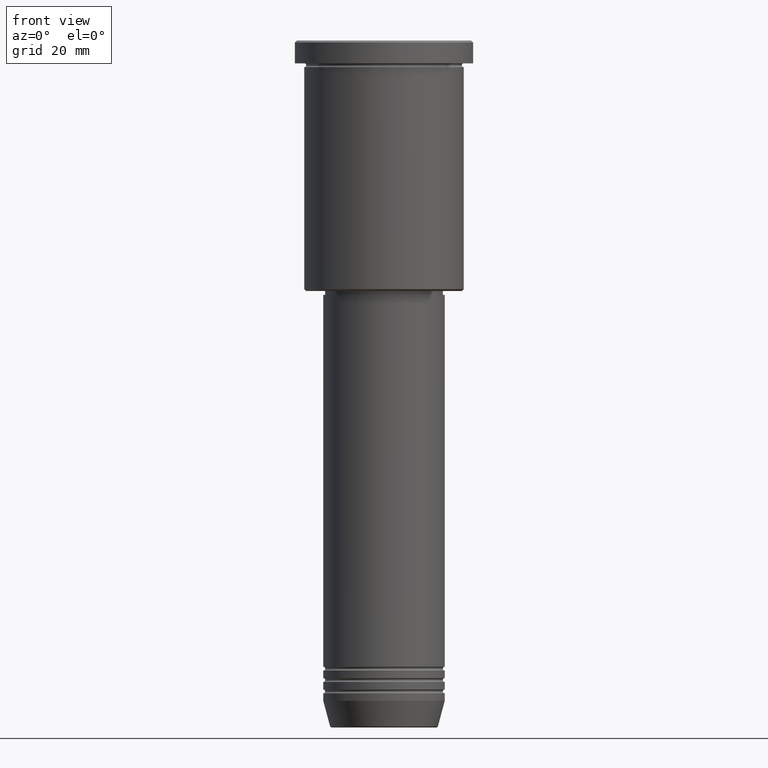
[diagram: clean part render]
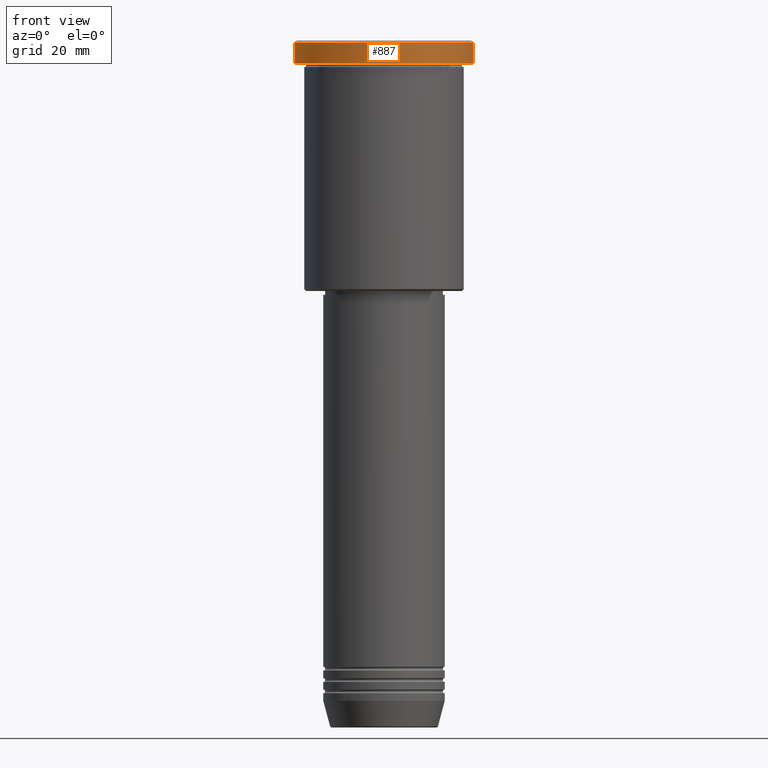
[diagram: same view with one face highlighted and labeled with its STEP entity id]
A machine part, front view. The second image highlights one B-rep face of the part: STEP entity #887.
In plain terms, the highlighted cylindrical surface (partial cylindrical patch) has radius 23.5 mm, axis along (-0, -0, 1).
Its self-contained STEP definition (entity closure, byte-faithful):
#17 = DIRECTION ( 'NONE',  ( 1.000000000000000000, 0.000000000000000000, 0.000000000000000000 ) ) ;
#21 = AXIS2_PLACEMENT_3D ( 'NONE', #1077, #1172, #17 ) ;
#58 = EDGE_CURVE ( 'NONE', #826, #503, #1037, .T. ) ;
#121 = CYLINDRICAL_SURFACE ( 'NONE', #1080, 23.50000000000000000 ) ;
#132 = CARTESIAN_POINT ( 'NONE',  ( 23.50000000000000000, 0.000000000000000000, -0.5000000000000004441 ) ) ;
#133 = CARTESIAN_POINT ( 'NONE',  ( -23.50000000000000000, 2.877919977996280320E-15, 0.000000000000000000 ) ) ;
#196 = CARTESIAN_POINT ( 'NONE',  ( 23.50000000000000000, 0.000000000000000000, 0.000000000000000000 ) ) ;
#205 = CARTESIAN_POINT ( 'NONE',  ( -23.50000000000000000, 2.877919977996280320E-15, -5.999999999999994671 ) ) ;
#215 = CARTESIAN_POINT ( 'NONE',  ( -23.50000000000000000, 2.877919977996280320E-15, -0.5000000000000004441 ) ) ;
#219 = EDGE_CURVE ( 'NONE', #1047, #503, #838, .T. ) ;
#246 = DIRECTION ( 'NONE',  ( -0.000000000000000000, -0.000000000000000000, 1.000000000000000000 ) ) ;
#376 = DIRECTION ( 'NONE',  ( 1.000000000000000000, 0.000000000000000000, 0.000000000000000000 ) ) ;
#399 = ORIENTED_EDGE ( 'NONE', *, *, #862, .T. ) ;
#403 = ORIENTED_EDGE ( 'NONE', *, *, #219, .T. ) ;
#405 = ORIENTED_EDGE ( 'NONE', *, *, #58, .F. ) ;
#414 = LINE ( 'NONE', #196, #1068 ) ;
#451 = DIRECTION ( 'NONE',  ( -0.000000000000000000, -0.000000000000000000, 1.000000000000000000 ) ) ;
#465 = DIRECTION ( 'NONE',  ( 1.000000000000000000, 0.000000000000000000, 0.000000000000000000 ) ) ;
#466 = EDGE_CURVE ( 'NONE', #712, #1047, #414, .T. ) ;
#500 = VECTOR ( 'NONE', #246, 1000.000000000000000 ) ;
#503 = VERTEX_POINT ( 'NONE', #215 ) ;
#562 = DIRECTION ( 'NONE',  ( -0.000000000000000000, -0.000000000000000000, 1.000000000000000000 ) ) ;
#576 = CARTESIAN_POINT ( 'NONE',  ( 0.000000000000000000, 0.000000000000000000, -5.999999999999994671 ) ) ;
#712 = VERTEX_POINT ( 'NONE', #1041 ) ;
#759 = FACE_OUTER_BOUND ( 'NONE', #1001, .T. ) ;
#826 = VERTEX_POINT ( 'NONE', #205 ) ;
#838 = CIRCLE ( 'NONE', #21, 23.50000000000000000 ) ;
#862 = EDGE_CURVE ( 'NONE', #826, #712, #1125, .T. ) ;
#887 = ADVANCED_FACE ( 'NONE', ( #759 ), #121, .T. ) ;
#991 = CARTESIAN_POINT ( 'NONE',  ( 0.000000000000000000, 0.000000000000000000, 0.000000000000000000 ) ) ;
#995 = AXIS2_PLACEMENT_3D ( 'NONE', #576, #1106, #465 ) ;
#1001 = EDGE_LOOP ( 'NONE', ( #405, #399, #1088, #403 ) ) ;
#1037 = LINE ( 'NONE', #133, #500 ) ;
#1041 = CARTESIAN_POINT ( 'NONE',  ( 23.50000000000000000, 0.000000000000000000, -5.999999999999994671 ) ) ;
#1047 = VERTEX_POINT ( 'NONE', #132 ) ;
#1068 = VECTOR ( 'NONE', #562, 1000.000000000000000 ) ;
#1077 = CARTESIAN_POINT ( 'NONE',  ( 0.000000000000000000, 0.000000000000000000, -0.5000000000000004441 ) ) ;
#1080 = AXIS2_PLACEMENT_3D ( 'NONE', #991, #451, #376 ) ;
#1088 = ORIENTED_EDGE ( 'NONE', *, *, #466, .T. ) ;
#1106 = DIRECTION ( 'NONE',  ( -0.000000000000000000, -0.000000000000000000, 1.000000000000000000 ) ) ;
#1125 = CIRCLE ( 'NONE', #995, 23.50000000000000000 ) ;
#1172 = DIRECTION ( 'NONE',  ( 0.000000000000000000, 0.000000000000000000, -1.000000000000000000 ) ) ;